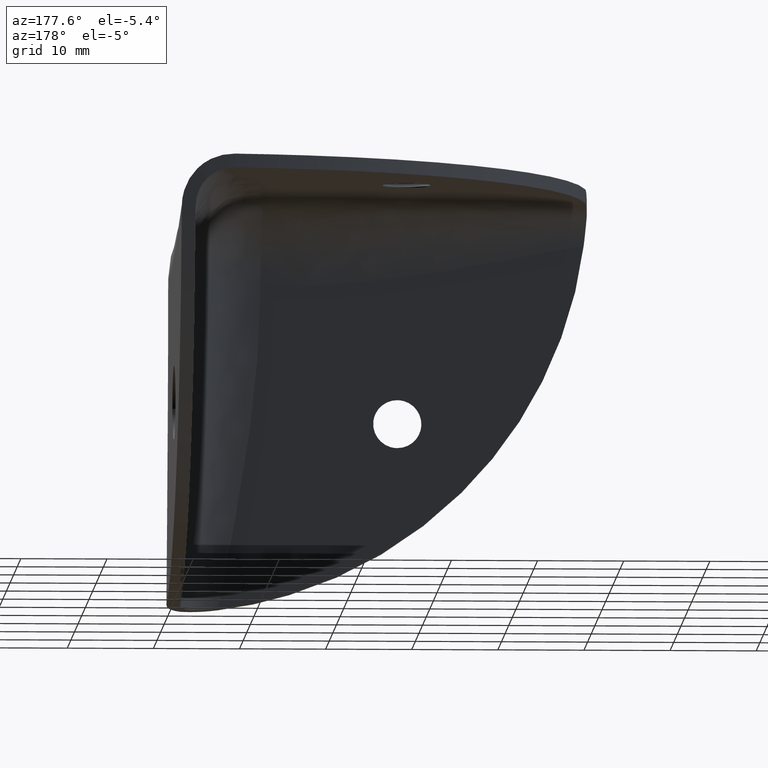
[diagram: clean part render]
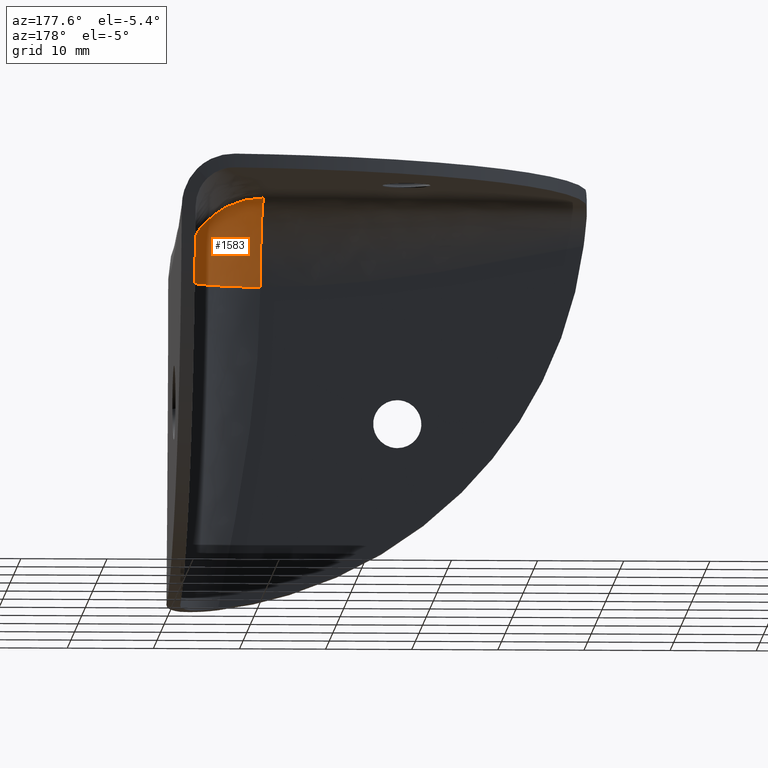
[diagram: same view with one face highlighted and labeled with its STEP entity id]
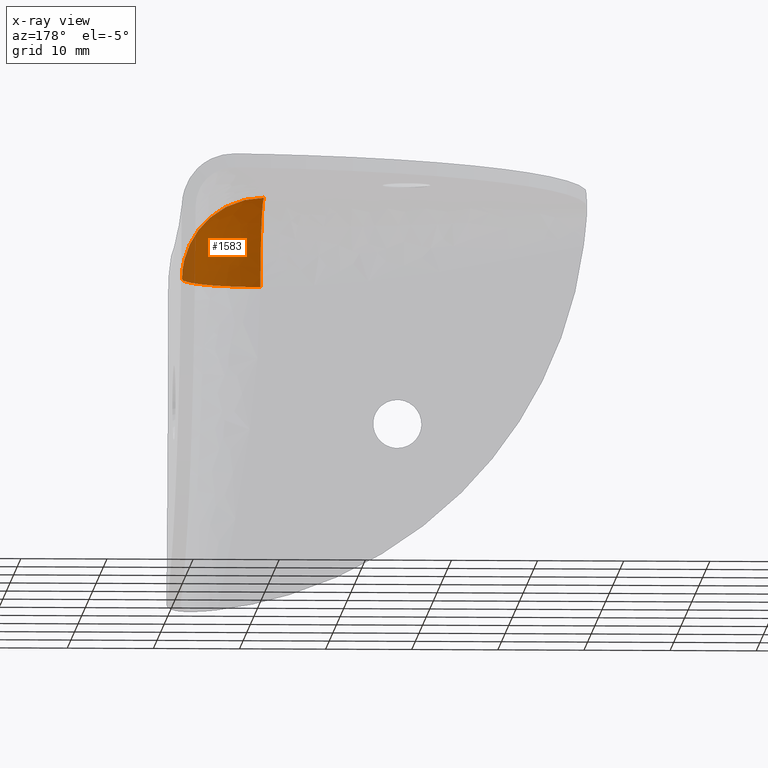
[diagram: x-ray of the same camera — body ghosted, the highlighted face saturated]
A machine part, auxiliary view. The second image highlights one B-rep face of the part: STEP entity #1583.
The next image is the same camera in x-ray: the body ghosted, the highlighted face saturated — about 8% of this face is hidden behind the body in this view.
In plain terms, the highlighted face is a freeform B-spline surface patch.
Its self-contained STEP definition (entity closure, byte-faithful):
#1471=CARTESIAN_POINT('',(-11.100000000000000,11.100000000000000,47.399999999999999));
#1472=VERTEX_POINT('',#1471);
#1480=CARTESIAN_POINT('',(-11.100000000000000,1.600000000000000,37.900000000000013));
#1481=VERTEX_POINT('',#1480);
#1482=CARTESIAN_POINT('',(-11.100000000000000,11.100000000000000,47.399999999999999));
#1483=CARTESIAN_POINT('',(-11.099999999999980,1.599999999999993,47.399999999999977));
#1484=CARTESIAN_POINT('',(-11.100000000000000,1.600000000000000,37.900000000000013));
#1492=(BOUNDED_CURVE()B_SPLINE_CURVE(2,(#1482,#1483,#1484),.UNSPECIFIED.,.F.,.U.)CURVE()GEOMETRIC_REPRESENTATION_ITEM()QUASI_UNIFORM_CURVE()RATIONAL_B_SPLINE_CURVE((1.0,0.707106781186548,1.0))REPRESENTATION_ITEM(''));
#1493=EDGE_CURVE('',#1472,#1481,#1492,.T.);
#1528=CARTESIAN_POINT('',(-1.756078538867786,11.310331671758274,36.197974055412729));
#1529=CARTESIAN_POINT('',(-1.380783563898985,11.738880641378968,38.311258052942470));
#1530=CARTESIAN_POINT('',(-3.274745340955033,14.417346788785137,43.993143786203888));
#1531=CARTESIAN_POINT('',(-7.047004337088187,16.560659350931903,44.533583165190450));
#1532=CARTESIAN_POINT('',(-1.468184620125630,6.310934450404854,37.160665955453489));
#1533=CARTESIAN_POINT('',(-0.935255977361949,6.406923997454692,40.098243399660063));
#1534=CARTESIAN_POINT('',(-3.484965294797835,10.012757111517590,47.747371893277993));
#1535=CARTESIAN_POINT('',(-8.142693555211094,13.914089117166801,47.381643055808617));
#1536=CARTESIAN_POINT('',(-8.336872496083709,1.454038159895128,37.160665955453489));
#1537=CARTESIAN_POINT('',(-8.464703631990885,1.082799937114636,40.098243399660063));
#1538=CARTESIAN_POINT('',(-11.014412949426770,4.688633051177533,47.747371893277993));
#1539=CARTESIAN_POINT('',(-13.583556802425909,10.066817411159581,47.381643055808617));
#1540=CARTESIAN_POINT('',(-11.607534996099739,1.691196990483548,36.688870710515125));
#1541=CARTESIAN_POINT('',(-11.993581963904111,1.387200199130027,39.212282784026392));
#1542=CARTESIAN_POINT('',(-14.218181455653786,4.533258637252422,45.886081731563976));
#1543=CARTESIAN_POINT('',(-15.738122966446095,9.436714484978662,46.022271643059312));
#1551=(BOUNDED_SURFACE()B_SPLINE_SURFACE(2,2,((#1528,#1532,#1536,#1540),(#1529,#1533,#1537,#1541),(#1530,#1534,#1538,#1542),(#1531,#1535,#1539,#1543)),.UNSPECIFIED.,.F.,.F.,.U.)B_SPLINE_SURFACE_WITH_KNOTS((3,1,3),(3,1,3),(0.0,5.556391428623423,16.655805021092910),(0.0,10.541214583539571,17.389739731796020),.UNSPECIFIED.)GEOMETRIC_REPRESENTATION_ITEM()RATIONAL_B_SPLINE_SURFACE(((1.442429445491099,1.096198836022767,1.096198836022767,1.242341917908716),(1.346230609468331,1.0,1.0,1.146143081885949),(1.346230609468331,1.0,1.0,1.146143081885949),(1.730100652238341,1.383870042770010,1.383870042770010,1.530013124655959)))REPRESENTATION_ITEM('')SURFACE());
#1552=CARTESIAN_POINT('',(-1.600000000000000,11.100000000000000,37.900000000000013));
#1553=VERTEX_POINT('',#1552);
#1554=CARTESIAN_POINT('',(-11.100000000000000,11.100000000000000,47.399999999999999));
#1555=CARTESIAN_POINT('',(-1.599999999999993,11.099999999999980,47.399999999999977));
#1556=CARTESIAN_POINT('',(-1.600000000000000,11.100000000000000,37.900000000000013));
#1564=(BOUNDED_CURVE()B_SPLINE_CURVE(2,(#1554,#1555,#1556),.UNSPECIFIED.,.F.,.U.)CURVE()GEOMETRIC_REPRESENTATION_ITEM()QUASI_UNIFORM_CURVE()RATIONAL_B_SPLINE_CURVE((1.0,0.707106781186548,1.0))REPRESENTATION_ITEM(''));
#1565=EDGE_CURVE('',#1472,#1553,#1564,.T.);
#1566=ORIENTED_EDGE('',*,*,#1565,.T.);
#1567=CARTESIAN_POINT('',(-1.600000000000000,11.100000000000000,37.900000000000013));
#1568=CARTESIAN_POINT('',(-1.599999999999993,1.599999999999993,37.899999999999984));
#1569=CARTESIAN_POINT('',(-11.100000000000000,1.600000000000000,37.900000000000013));
#1577=(BOUNDED_CURVE()B_SPLINE_CURVE(2,(#1567,#1568,#1569),.UNSPECIFIED.,.F.,.U.)CURVE()GEOMETRIC_REPRESENTATION_ITEM()QUASI_UNIFORM_CURVE()RATIONAL_B_SPLINE_CURVE((1.0,0.707106781186548,1.0))REPRESENTATION_ITEM(''));
#1578=EDGE_CURVE('',#1553,#1481,#1577,.T.);
#1579=ORIENTED_EDGE('',*,*,#1578,.T.);
#1580=ORIENTED_EDGE('',*,*,#1493,.F.);
#1581=EDGE_LOOP('',(#1566,#1579,#1580));
#1582=FACE_OUTER_BOUND('',#1581,.T.);
#1583=ADVANCED_FACE('',(#1582),#1551,.F.);